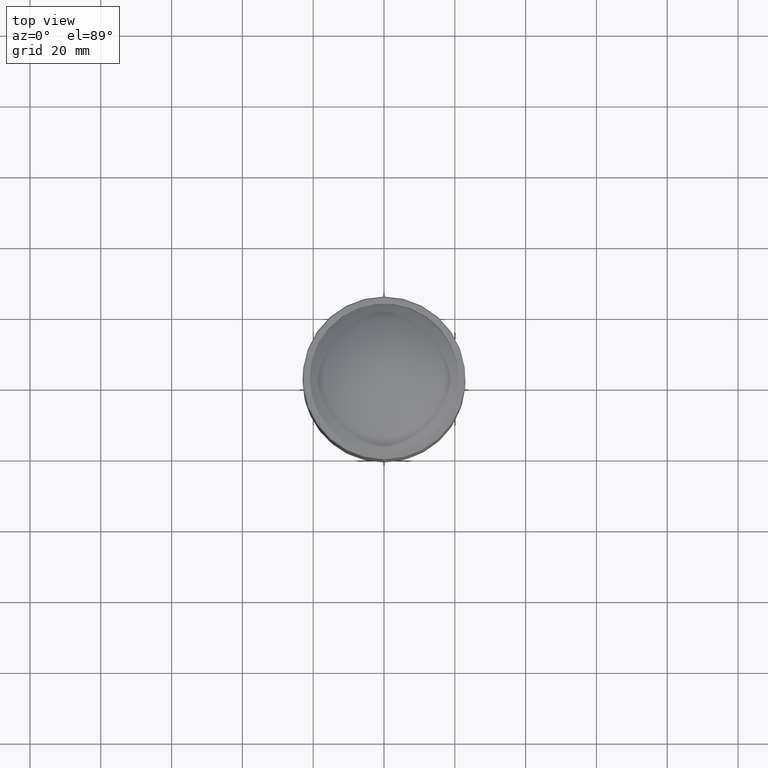
[diagram: clean part render]
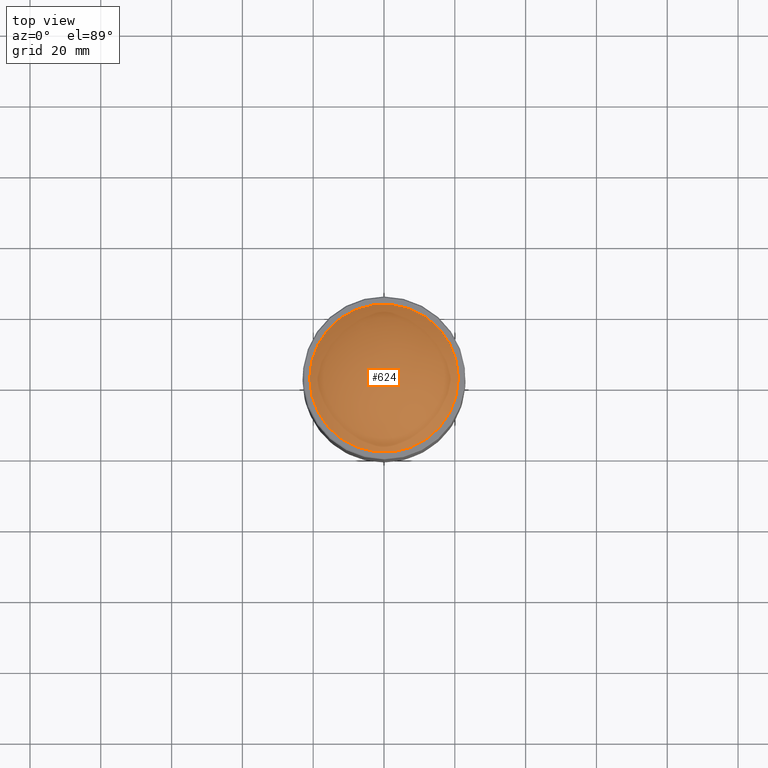
[diagram: same view with one face highlighted and labeled with its STEP entity id]
A machine part, top view. The second image highlights one B-rep face of the part: STEP entity #624.
In plain terms, the highlighted spherical surface has radius 31.2095 mm.
Its self-contained STEP definition (entity closure, byte-faithful):
#5 = DIRECTION ( 'NONE',  ( 0.000000000000000000, 0.000000000000000000, -1.000000000000000000 ) ) ;
#33 = AXIS2_PLACEMENT_3D ( 'NONE', #665, #226, #283 ) ;
#36 = ORIENTED_EDGE ( 'NONE', *, *, #354, .F. ) ;
#128 = CARTESIAN_POINT ( 'NONE',  ( -7.285838599102589797E-14, -5.290196298571356543E-14, -618.5805314758425766 ) ) ;
#226 = DIRECTION ( 'NONE',  ( 4.665676044949142225E-17, 1.934749774458438864E-17, 1.000000000000000000 ) ) ;
#283 = DIRECTION ( 'NONE',  ( -0.3830490080632378835, 0.9237280213470681067, 0.000000000000000000 ) ) ;
#354 = EDGE_CURVE ( 'NONE', #452, #452, #726, .T. ) ;
#368 = AXIS2_PLACEMENT_3D ( 'NONE', #128, #5, #803 ) ;
#416 = FACE_OUTER_BOUND ( 'NONE', #625, .T. ) ;
#448 = CARTESIAN_POINT ( 'NONE',  ( -21.00000000000007461, -5.290196298571356543E-14, -618.5805314758425766 ) ) ;
#452 = VERTEX_POINT ( 'NONE', #448 ) ;
#536 = SPHERICAL_SURFACE ( 'NONE', #33, 31.20951493132240273 ) ;
#624 = ADVANCED_FACE ( 'NONE', ( #416 ), #536, .T. ) ;
#625 = EDGE_LOOP ( 'NONE', ( #36 ) ) ;
#665 = CARTESIAN_POINT ( 'NONE',  ( -8.326672684688674053E-14, -4.163336342344337027E-14, -641.6680567275545854 ) ) ;
#726 = CIRCLE ( 'NONE', #368, 21.00000000000000000 ) ;
#803 = DIRECTION ( 'NONE',  ( -1.000000000000000000, 0.000000000000000000, 0.000000000000000000 ) ) ;